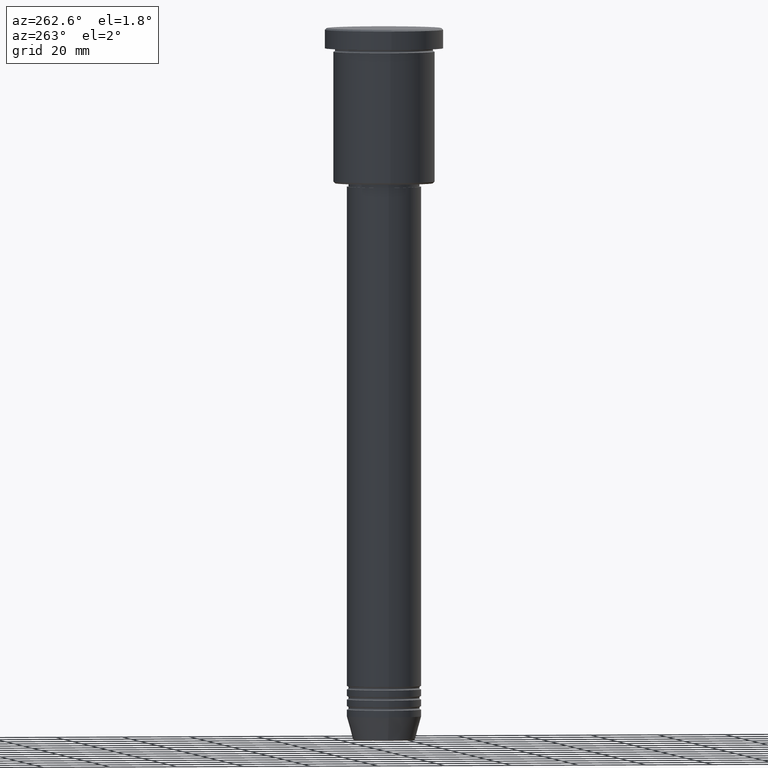
[diagram: clean part render]
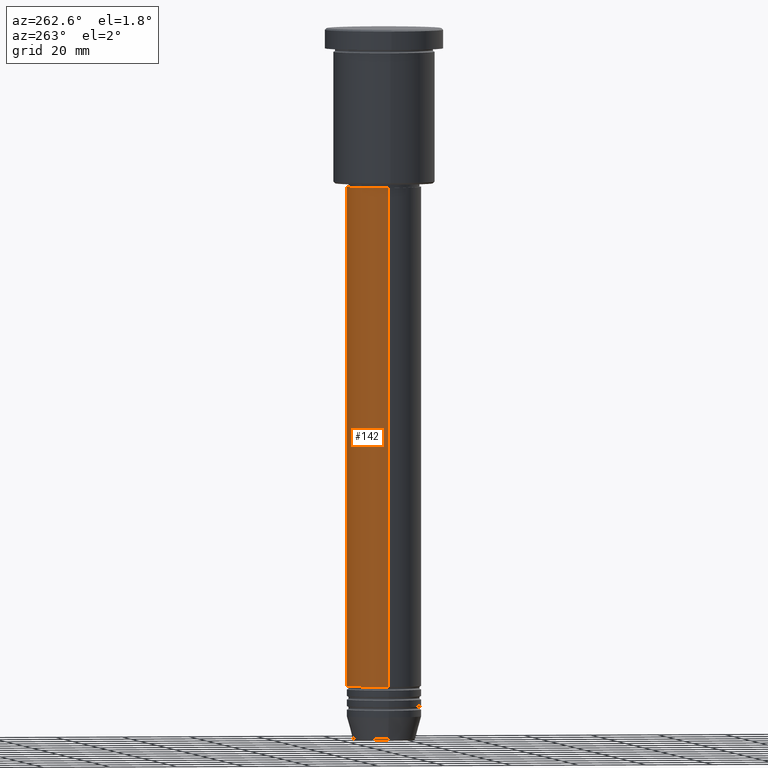
[diagram: same view with one face highlighted and labeled with its STEP entity id]
A machine part, auxiliary view. The second image highlights one B-rep face of the part: STEP entity #142.
In plain terms, the highlighted cylindrical surface (partial cylindrical patch) has radius 11 mm, axis along (-0, -0, 1).
Its self-contained STEP definition (entity closure, byte-faithful):
#9 = LINE ( 'NONE', #282, #582 ) ;
#20 = CARTESIAN_POINT ( 'NONE',  ( -11.00000000000000000, 1.347111479062088405E-15, -195.0000000000000000 ) ) ;
#142 = ADVANCED_FACE ( 'NONE', ( #1099 ), #374, .T. ) ;
#162 = CIRCLE ( 'NONE', #295, 11.00000000000000000 ) ;
#282 = CARTESIAN_POINT ( 'NONE',  ( -11.00000000000000000, 1.347111479062088405E-15, 0.000000000000000000 ) ) ;
#295 = AXIS2_PLACEMENT_3D ( 'NONE', #742, #944, #388 ) ;
#297 = VECTOR ( 'NONE', #417, 1000.000000000000000 ) ;
#305 = ORIENTED_EDGE ( 'NONE', *, *, #460, .T. ) ;
#374 = CYLINDRICAL_SURFACE ( 'NONE', #537, 11.00000000000000000 ) ;
#384 = EDGE_LOOP ( 'NONE', ( #305, #1161, #1116, #921 ) ) ;
#385 = EDGE_CURVE ( 'NONE', #466, #1129, #162, .T. ) ;
#388 = DIRECTION ( 'NONE',  ( 1.000000000000000000, 0.000000000000000000, 0.000000000000000000 ) ) ;
#417 = DIRECTION ( 'NONE',  ( -0.000000000000000000, -0.000000000000000000, 1.000000000000000000 ) ) ;
#450 = CARTESIAN_POINT ( 'NONE',  ( 0.000000000000000000, 0.000000000000000000, 0.000000000000000000 ) ) ;
#460 = EDGE_CURVE ( 'NONE', #664, #521, #1018, .T. ) ;
#466 = VERTEX_POINT ( 'NONE', #1057 ) ;
#467 = DIRECTION ( 'NONE',  ( -0.000000000000000000, -0.000000000000000000, 1.000000000000000000 ) ) ;
#509 = LINE ( 'NONE', #877, #297 ) ;
#521 = VERTEX_POINT ( 'NONE', #20 ) ;
#537 = AXIS2_PLACEMENT_3D ( 'NONE', #450, #467, #1038 ) ;
#539 = AXIS2_PLACEMENT_3D ( 'NONE', #1054, #882, #792 ) ;
#544 = EDGE_CURVE ( 'NONE', #664, #466, #509, .T. ) ;
#567 = CARTESIAN_POINT ( 'NONE',  ( -11.00000000000000000, 1.347111479062088405E-15, -47.00000000000002132 ) ) ;
#577 = EDGE_CURVE ( 'NONE', #521, #1129, #9, .T. ) ;
#582 = VECTOR ( 'NONE', #701, 1000.000000000000000 ) ;
#664 = VERTEX_POINT ( 'NONE', #720 ) ;
#701 = DIRECTION ( 'NONE',  ( -0.000000000000000000, -0.000000000000000000, 1.000000000000000000 ) ) ;
#720 = CARTESIAN_POINT ( 'NONE',  ( 11.00000000000000000, 0.000000000000000000, -195.0000000000000000 ) ) ;
#742 = CARTESIAN_POINT ( 'NONE',  ( 0.000000000000000000, 0.000000000000000000, -47.00000000000002132 ) ) ;
#792 = DIRECTION ( 'NONE',  ( 1.000000000000000000, 0.000000000000000000, 0.000000000000000000 ) ) ;
#877 = CARTESIAN_POINT ( 'NONE',  ( 11.00000000000000000, 0.000000000000000000, 0.000000000000000000 ) ) ;
#882 = DIRECTION ( 'NONE',  ( -0.000000000000000000, -0.000000000000000000, 1.000000000000000000 ) ) ;
#921 = ORIENTED_EDGE ( 'NONE', *, *, #544, .F. ) ;
#944 = DIRECTION ( 'NONE',  ( -0.000000000000000000, -0.000000000000000000, 1.000000000000000000 ) ) ;
#1018 = CIRCLE ( 'NONE', #539, 11.00000000000000000 ) ;
#1038 = DIRECTION ( 'NONE',  ( 1.000000000000000000, 0.000000000000000000, 0.000000000000000000 ) ) ;
#1054 = CARTESIAN_POINT ( 'NONE',  ( 0.000000000000000000, 0.000000000000000000, -195.0000000000000000 ) ) ;
#1057 = CARTESIAN_POINT ( 'NONE',  ( 11.00000000000000000, 0.000000000000000000, -47.00000000000002132 ) ) ;
#1099 = FACE_OUTER_BOUND ( 'NONE', #384, .T. ) ;
#1116 = ORIENTED_EDGE ( 'NONE', *, *, #385, .F. ) ;
#1129 = VERTEX_POINT ( 'NONE', #567 ) ;
#1161 = ORIENTED_EDGE ( 'NONE', *, *, #577, .T. ) ;